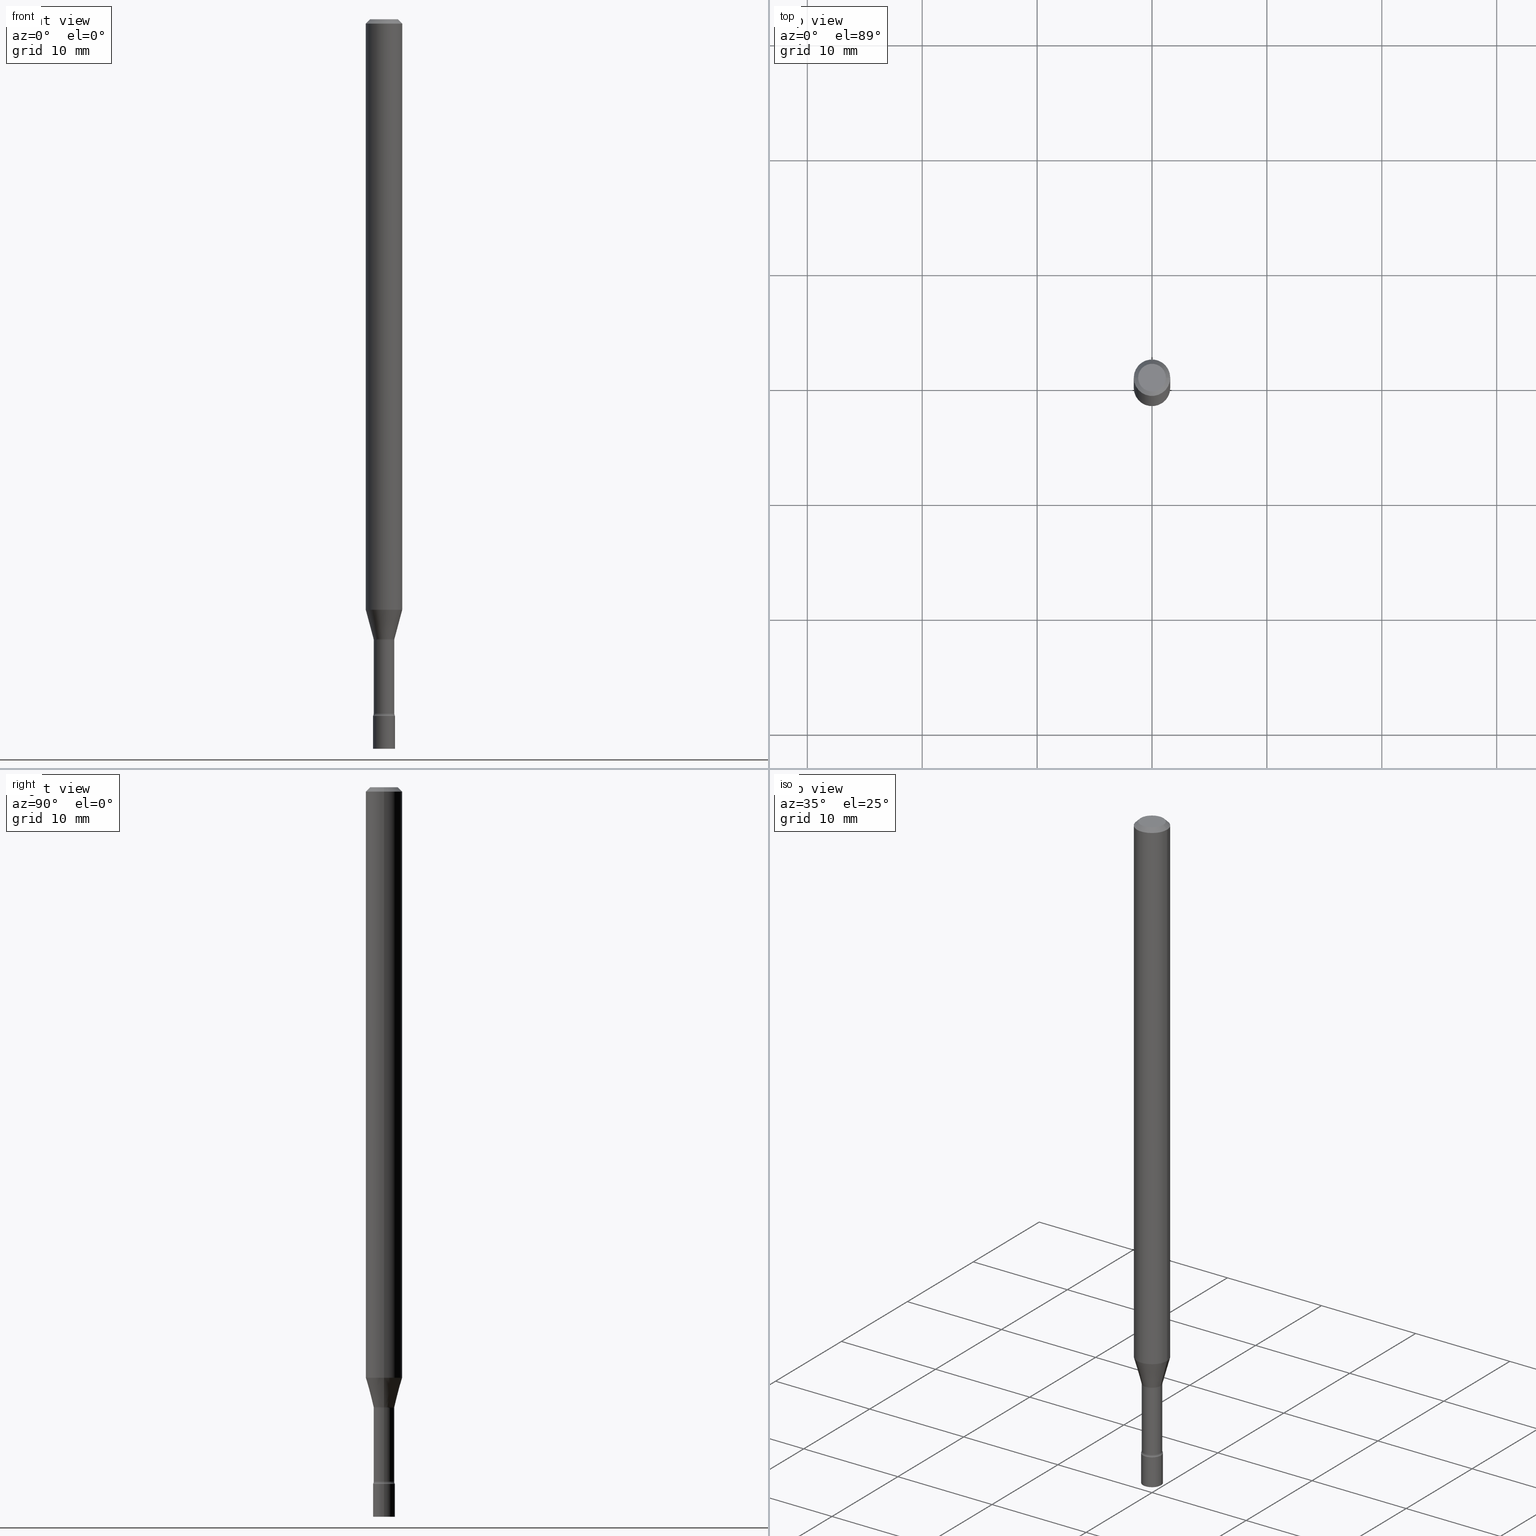
[diagram: canonical four-view strip — front | top / right | iso, engineering-drawing reading convention]
A machine part, canonical four-view strip (front | top / right | iso — engineering-drawing reading convention). The complete STEP part file that produces these views, byte-faithful:
ISO-10303-21;
HEADER;
FILE_DESCRIPTION (( 'STEP AP203' ),
    '1' );
FILE_NAME ('09712.STEP',
    '2024-03-09T01:08:27',
    ( '' ),
    ( '' ),
    'SwSTEP 2.0',
    'SolidWorks 2023',
    '' );
FILE_SCHEMA (( 'CONFIG_CONTROL_DESIGN' ));
ENDSEC;

DATA;
#1 = EDGE_CURVE ( 'NONE', #271, #263, #385, .T. ) ;
#2 = AXIS2_PLACEMENT_3D ( 'NONE', #180, #373, #319 ) ;
#3 = FACE_OUTER_BOUND ( 'NONE', #367, .T. ) ;
#4 = PERSON_AND_ORGANIZATION ( #255, #131 ) ;
#5 = CARTESIAN_POINT ( 'NONE',  ( 6.113672015462842613E-29, -8.728703347107864943E-15, -2.500000000000000000 ) ) ;
#6 = FACE_OUTER_BOUND ( 'NONE', #26, .T. ) ;
#7 = CARTESIAN_POINT ( 'NONE',  ( 5.818010580909894890E-29, -8.306577176965639319E-15, -2.379098259685360262 ) ) ;
#8 = AXIS2_PLACEMENT_3D ( 'NONE', #512, #240, #83 ) ;
#9 = SECURITY_CLASSIFICATION ( '', '', #462 ) ;
#10 = DIRECTION ( 'NONE',  ( 1.000000000000000000, -6.982962677686268288E-15, 0.000000000000000000 ) ) ;
#11 = ADVANCED_FACE ( 'NONE', ( #503 ), #213, .T. ) ;
#12 = COORDINATED_UNIVERSAL_TIME_OFFSET ( 5, 0, .BEHIND. ) ;
#13 = PLANE ( 'NONE',  #107 ) ;
#14 = ORIENTED_EDGE ( 'NONE', *, *, #309, .F. ) ;
#15 = CALENDAR_DATE ( 2024, 8, 3 ) ;
#16 = COORDINATED_UNIVERSAL_TIME_OFFSET ( 5, 0, .BEHIND. ) ;
#17 = EDGE_CURVE ( 'NONE', #48, #209, #130, .T. ) ;
#18 = FACE_OUTER_BOUND ( 'NONE', #421, .T. ) ;
#19 = ORIENTED_EDGE ( 'NONE', *, *, #282, .T. ) ;
#20 = CARTESIAN_POINT ( 'NONE',  ( 0.06250000000000000000, -4.364351673553916694E-16, 3.047610484872459871E-30 ) ) ;
#21 = COORDINATED_UNIVERSAL_TIME_OFFSET ( 5, 0, .BEHIND. ) ;
#22 = DIRECTION ( 'NONE',  ( 2.438088387897960049E-29, -3.491481338843145188E-15, -1.000000000000000000 ) ) ;
#23 = VERTEX_POINT ( 'NONE', #420 ) ;
#24 = DIRECTION ( 'NONE',  ( -2.445468806185136597E-29, 3.491481338843145583E-15, 1.000000000000000000 ) ) ;
#25 = LOCAL_TIME ( 20, 8, 27.00000000000000000, #301 ) ;
#26 = EDGE_LOOP ( 'NONE', ( #499, #104, #425, #266 ) ) ;
#27 = PLANE ( 'NONE',  #401 ) ;
#28 = DIRECTION ( 'NONE',  ( -0.2588190451025217942, 5.211531920934552619E-15, 0.9659258262890679791 ) ) ;
#29 = CYLINDRICAL_SURFACE ( 'NONE', #8, 0.06250000000000000000 ) ;
#30 = DIRECTION ( 'NONE',  ( -1.000000000000000000, 7.105427357600982137E-15, 0.000000000000000000 ) ) ;
#31 = ORIENTED_EDGE ( 'NONE', *, *, #207, .T. ) ;
#32 = LENGTH_MEASURE_WITH_UNIT ( LENGTH_MEASURE( 0.02539999999999999897 ), #93 );
#33 = CARTESIAN_POINT ( 'NONE',  ( -0.03524999999999998274, 2.504663143554351929E-16, -1.733924619314853502E-30 ) ) ;
#34 = ADVANCED_FACE ( 'NONE', ( #18 ), #430, .F. ) ;
#35 = CARTESIAN_POINT ( 'NONE',  ( -0.06250000000000000000, 3.840629472727443437E-16, -0.01500000000000003067 ) ) ;
#36 = CIRCLE ( 'NONE', #393, 0.03524999999999999661 ) ;
#37 = AXIS2_PLACEMENT_3D ( 'NONE', #242, #128, #191 ) ;
#38 = ORIENTED_EDGE ( 'NONE', *, *, #202, .F. ) ;
#39 = DIRECTION ( 'NONE',  ( -2.445468806185136597E-29, 3.491481338843145583E-15, 1.000000000000000000 ) ) ;
#40 = VERTEX_POINT ( 'NONE', #189 ) ;
#41 = CARTESIAN_POINT ( 'NONE',  ( 6.113672015462842613E-29, -8.728703347107864943E-15, -2.500000000000000000 ) ) ;
#42 = DIRECTION ( 'NONE',  ( 1.000000000000000000, -6.982962677686266711E-15, 0.000000000000000000 ) ) ;
#43 = CIRCLE ( 'NONE', #320, 0.03749999999999999861 ) ;
#44 = AXIS2_PLACEMENT_3D ( 'NONE', #72, #78, #42 ) ;
#45 = ADVANCED_FACE ( 'NONE', ( #424 ), #65, .F. ) ;
#46 = CARTESIAN_POINT ( 'NONE',  ( -0.03576111260566391253, -6.889435243139543592E-15, -2.123092501787273711 ) ) ;
#47 =( CONVERSION_BASED_UNIT ( 'INCH', #32 ) LENGTH_UNIT ( ) NAMED_UNIT ( #161 ) );
#48 = VERTEX_POINT ( 'NONE', #277 ) ;
#49 = EDGE_CURVE ( 'NONE', #89, #147, #441, .T. ) ;
#50 = DIRECTION ( 'NONE',  ( -2.445468806185136877E-29, 3.491481338843145188E-15, 1.000000000000000000 ) ) ;
#51 = AXIS2_PLACEMENT_3D ( 'NONE', #165, #434, #125 ) ;
#52 = ORIENTED_EDGE ( 'NONE', *, *, #296, .T. ) ;
#53 = VECTOR ( 'NONE', #232, 39.37007874015748143 ) ;
#54 = FACE_OUTER_BOUND ( 'NONE', #299, .T. ) ;
#55 = CARTESIAN_POINT ( 'NONE',  ( 5.201450494285011202E-29, -7.426292778619762925E-15, -2.126974787463811190 ) ) ;
#56 = DIRECTION ( 'NONE',  ( 1.000000000000000000, -6.982962677686264344E-15, 4.883557194083111780E-29 ) ) ;
#57 = APPROVAL_ROLE ( '' ) ;
#58 = CARTESIAN_POINT ( 'NONE',  ( 7.070806723891919892E-46, -1.009523804376275404E-31, -2.891391092786900929E-17 ) ) ;
#59 = ORIENTED_EDGE ( 'NONE', *, *, #350, .F. ) ;
#60 = VECTOR ( 'NONE', #268, 39.37007874015748143 ) ;
#61 = EDGE_CURVE ( 'NONE', #23, #387, #386, .T. ) ;
#62 = CARTESIAN_POINT ( 'NONE',  ( 4.947920986193955666E-29, -7.064319833347612909E-15, -2.023301615493748873 ) ) ;
#63 = EDGE_LOOP ( 'NONE', ( #369, #496 ) ) ;
#64 = PERSON_AND_ORGANIZATION ( #255, #131 ) ;
#65 = PLANE ( 'NONE',  #483 ) ;
#66 = EDGE_LOOP ( 'NONE', ( #200, #303, #455, #475 ) ) ;
#67 = CC_DESIGN_PERSON_AND_ORGANIZATION_ASSIGNMENT ( #192, #460, ( #9 ) ) ;
#68 = LINE ( 'NONE', #515, #53 ) ;
#69 = MANIFOLD_SOLID_BREP ( 'Body-Move/Copy2[1]', #140 ) ;
#70 = PERSON_AND_ORGANIZATION_ROLE ( 'design_supplier' ) ;
#71 = EDGE_LOOP ( 'NONE', ( #133, #19, #220, #59 ) ) ;
#72 = CARTESIAN_POINT ( 'NONE',  ( 3.668203209277712094E-31, -5.237222008264728876E-17, -0.01500000000000003067 ) ) ;
#73 = CIRCLE ( 'NONE', #487, 0.03524999999999999661 ) ;
#74 = DIRECTION ( 'NONE',  ( 1.000000000000000000, -6.982962677686266711E-15, 4.876176775795935793E-29 ) ) ;
#75 = PRODUCT_DEFINITION_FORMATION_WITH_SPECIFIED_SOURCE ( 'ANY', '', #412, .NOT_KNOWN. ) ;
#76 = VERTEX_POINT ( 'NONE', #391 ) ;
#77 = CARTESIAN_POINT ( 'NONE',  ( 0.000000000000000000, 0.000000000000000000, 0.000000000000000000 ) ) ;
#78 = DIRECTION ( 'NONE',  ( -2.445468806185136597E-29, 3.491481338843145583E-15, 1.000000000000000000 ) ) ;
#79 = EDGE_CURVE ( 'NONE', #387, #147, #311, .T. ) ;
#80 = FACE_OUTER_BOUND ( 'NONE', #261, .T. ) ;
#81 = ORIENTED_EDGE ( 'NONE', *, *, #357, .T. ) ;
#82 = ADVANCED_FACE ( 'NONE', ( #351 ), #514, .T. ) ;
#83 = DIRECTION ( 'NONE',  ( 1.000000000000000000, -6.982962677686266711E-15, 4.876176775795935793E-29 ) ) ;
#84 = MANIFOLD_SOLID_BREP ( 'Body-Move/Copy2[2]', #327 ) ;
#85 = VECTOR ( 'NONE', #206, 39.37007874015748143 ) ;
#86 = CIRCLE ( 'NONE', #164, 0.03576111260566391253 ) ;
#87 = ADVANCED_FACE ( 'NONE', ( #3 ), #486, .T. ) ;
#88 = DIRECTION ( 'NONE',  ( -2.438088387897960049E-29, 3.491481338843145188E-15, 1.000000000000000000 ) ) ;
#89 = VERTEX_POINT ( 'NONE', #46 ) ;
#90 = EDGE_CURVE ( 'NONE', #156, #504, #519, .T. ) ;
#91 = DIRECTION ( 'NONE',  ( -2.445468806185136597E-29, 3.491481338843145583E-15, 1.000000000000000000 ) ) ;
#92 = AXIS2_PLACEMENT_3D ( 'NONE', #248, #88, #396 ) ;
#93 =( LENGTH_UNIT ( ) NAMED_UNIT ( * ) SI_UNIT ( $, .METRE. ) );
#94 = CARTESIAN_POINT ( 'NONE',  ( 0.000000000000000000, 0.000000000000000000, 0.000000000000000000 ) ) ;
#95 = DIRECTION ( 'NONE',  ( 7.105427357601001859E-15, 1.000000000000000000, -3.491481338843145583E-15 ) ) ;
#96 = ADVANCED_FACE ( 'NONE', ( #171 ), #479, .T. ) ;
#97 = FACE_OUTER_BOUND ( 'NONE', #66, .T. ) ;
#98 = APPROVAL_DATE_TIME ( #188, #244 ) ;
#99 = CARTESIAN_POINT ( 'NONE',  ( 3.668203209277712094E-31, -5.237222008264728876E-17, -0.01500000000000003067 ) ) ;
#100 = APPROVAL ( #423, 'UNSPECIFIED' ) ;
#101 = CALENDAR_DATE ( 2024, 8, 3 ) ;
#102 = ORIENTED_EDGE ( 'NONE', *, *, #61, .T. ) ;
#103 = EDGE_CURVE ( 'NONE', #494, #176, #43, .T. ) ;
#104 = ORIENTED_EDGE ( 'NONE', *, *, #61, .F. ) ;
#105 = DIRECTION ( 'NONE',  ( -2.445468806185136597E-29, 3.491481338843145583E-15, 1.000000000000000000 ) ) ;
#106 = ORIENTED_EDGE ( 'NONE', *, *, #370, .F. ) ;
#107 = AXIS2_PLACEMENT_3D ( 'NONE', #139, #284, #216 ) ;
#108 = CIRCLE ( 'NONE', #44, 0.06250000000000000000 ) ;
#109 = PERSON_AND_ORGANIZATION_ROLE ( 'creator' ) ;
#110 = CC_DESIGN_PERSON_AND_ORGANIZATION_ASSIGNMENT ( #228, #109, ( #75 ) ) ;
#111 = EDGE_LOOP ( 'NONE', ( #224, #374 ) ) ;
#112 = ORIENTED_EDGE ( 'NONE', *, *, #49, .F. ) ;
#113 = CC_DESIGN_PERSON_AND_ORGANIZATION_ASSIGNMENT ( #4, #222, ( #412 ) ) ;
#114 = APPROVAL_ROLE ( '' ) ;
#115 = CARTESIAN_POINT ( 'NONE',  ( 0.06250000000000000000, -4.811533449433680977E-16, -0.01500000000000003067 ) ) ;
#116 = ORIENTED_EDGE ( 'NONE', *, *, #443, .F. ) ;
#117 = DIRECTION ( 'NONE',  ( -2.445468806185136597E-29, 3.491481338843145583E-15, 1.000000000000000000 ) ) ;
#118 = DIRECTION ( 'NONE',  ( -2.445468806185136877E-29, 3.491481338843145188E-15, 1.000000000000000000 ) ) ;
#119 = CARTESIAN_POINT ( 'NONE',  ( 5.191956485766338459E-29, -7.412737850628073127E-15, -2.123092501787273711 ) ) ;
#120 = ORIENTED_EDGE ( 'NONE', *, *, #174, .F. ) ;
#121 = CIRCLE ( 'NONE', #283, 0.03749999999999999861 ) ;
#122 = TOROIDAL_SURFACE ( 'NONE', #400, 0.05025000000000001688, 0.01500000000000003414 ) ;
#123 = AXIS2_PLACEMENT_3D ( 'NONE', #383, #117, #198 ) ;
#124 = DIRECTION ( 'NONE',  ( -2.445468806185136597E-29, 3.491481338843145583E-15, 1.000000000000000000 ) ) ;
#125 = DIRECTION ( 'NONE',  ( 1.000000000000000000, -6.982962677686267499E-15, 4.876681293081646444E-29 ) ) ;
#126 = ORIENTED_EDGE ( 'NONE', *, *, #17, .F. ) ;
#127 = EDGE_CURVE ( 'NONE', #331, #76, #477, .T. ) ;
#128 = DIRECTION ( 'NONE',  ( -2.445468806185136597E-29, 3.491481338843145583E-15, 1.000000000000000000 ) ) ;
#129 = DIRECTION ( 'NONE',  ( 2.445468806185136597E-29, -3.491481338843145583E-15, -1.000000000000000000 ) ) ;
#130 = CIRCLE ( 'NONE', #272, 0.01500000000000001853 ) ;
#131 = ORGANIZATION ( 'UNSPECIFIED', 'UNSPECIFIED', '' ) ;
#132 = PRODUCT_RELATED_PRODUCT_CATEGORY ( 'detail', '', ( #412 ) ) ;
#133 = ORIENTED_EDGE ( 'NONE', *, *, #357, .F. ) ;
#134 = DIRECTION ( 'NONE',  ( 1.000000000000000000, -6.982962677686262766E-15, 0.000000000000000000 ) ) ;
#135 = DIRECTION ( 'NONE',  ( 1.000000000000000000, -6.982962677686268288E-15, 0.000000000000000000 ) ) ;
#136 = AXIS2_PLACEMENT_3D ( 'NONE', #41, #210, #135 ) ;
#137 = TOROIDAL_SURFACE ( 'NONE', #419, 0.05024999999999999606, 0.01500000000000001853 ) ;
#138 = ADVANCED_FACE ( 'NONE', ( #80 ), #29, .T. ) ;
#139 = CARTESIAN_POINT ( 'NONE',  ( 2.618611004132960891E-16, 0.03749999999999126948, -2.500000000000000000 ) ) ;
#140 = CLOSED_SHELL ( 'NONE', ( #403, #87, #481, #322 ) ) ;
#141 = AXIS2_PLACEMENT_3D ( 'NONE', #291, #95, #408 ) ;
#142 = APPLICATION_PROTOCOL_DEFINITION ( 'international standard', 'config_control_design', 1994, #447 ) ;
#143 = CARTESIAN_POINT ( 'NONE',  ( 0.03524999999999998274, -2.461494343884408286E-16, 1.718852313468066708E-30 ) ) ;
#144 = DATE_TIME_ROLE ( 'creation_date' ) ;
#145 = DIRECTION ( 'NONE',  ( -2.445468806185136597E-29, 3.491481338843145583E-15, 1.000000000000000000 ) ) ;
#146 = DIRECTION ( 'NONE',  ( 1.000000000000000000, -6.982962677686251722E-15, 0.000000000000000000 ) ) ;
#147 = VERTEX_POINT ( 'NONE', #245 ) ;
#148 = CC_DESIGN_DATE_AND_TIME_ASSIGNMENT ( #492, #144, ( #364 ) ) ;
#149 = SHAPE_DEFINITION_REPRESENTATION ( #172, #442 ) ;
#150 = ORIENTED_EDGE ( 'NONE', *, *, #448, .F. ) ;
#151 = CIRCLE ( 'NONE', #51, 0.04749999999999999362 ) ;
#152 =( GEOMETRIC_REPRESENTATION_CONTEXT ( 3 ) GLOBAL_UNCERTAINTY_ASSIGNED_CONTEXT ( ( #297 ) ) GLOBAL_UNIT_ASSIGNED_CONTEXT ( ( #47, #362, #358 ) ) REPRESENTATION_CONTEXT ( 'NONE', 'WORKASPACE' ) );
#153 = PERSON_AND_ORGANIZATION ( #255, #131 ) ;
#154 = CARTESIAN_POINT ( 'NONE',  ( 0.06250000000000000000, -7.500755000703003789E-15, -2.023301615493748873 ) ) ;
#155 = DIRECTION ( 'NONE',  ( -6.982962677686266711E-15, -1.000000000000000000, 3.491481338843145583E-15 ) ) ;
#156 = VERTEX_POINT ( 'NONE', #506 ) ;
#157 = CARTESIAN_POINT ( 'NONE',  ( -0.03749999999999999861, 2.664535259100375598E-16, -1.844600658845589458E-30 ) ) ;
#158 = LINE ( 'NONE', #35, #85 ) ;
#159 = CARTESIAN_POINT ( 'NONE',  ( 5.201450494285011202E-29, -7.426292778619762925E-15, -2.126974787463811190 ) ) ;
#160 = ORIENTED_EDGE ( 'NONE', *, *, #431, .T. ) ;
#161 = DIMENSIONAL_EXPONENTS ( 1.000000000000000000, 0.000000000000000000, 0.000000000000000000, 0.000000000000000000, 0.000000000000000000, 0.000000000000000000, 0.000000000000000000 ) ;
#162 = AXIS2_PLACEMENT_3D ( 'NONE', #185, #294, #146 ) ;
#163 = DIRECTION ( 'NONE',  ( 1.000000000000000000, -6.982962677686267499E-15, 4.883557194083112901E-29 ) ) ;
#164 = AXIS2_PLACEMENT_3D ( 'NONE', #247, #508, #402 ) ;
#165 = CARTESIAN_POINT ( 'NONE',  ( 7.070806723891919892E-46, -1.009523804376275404E-31, -2.891391092786900929E-17 ) ) ;
#166 = DIRECTION ( 'NONE',  ( -2.445468806185136877E-29, 3.491481338843145188E-15, 1.000000000000000000 ) ) ;
#167 = LINE ( 'NONE', #115, #60 ) ;
#168 = APPROVAL ( #179, 'UNSPECIFIED' ) ;
#169 = VECTOR ( 'NONE', #118, 39.37007874015748143 ) ;
#170 = EDGE_LOOP ( 'NONE', ( #208, #160, #295, #359 ) ) ;
#171 = FACE_OUTER_BOUND ( 'NONE', #398, .T. ) ;
#172 = PRODUCT_DEFINITION_SHAPE ( 'NONE', 'NONE',  #364 ) ;
#173 = DIRECTION ( 'NONE',  ( -2.445468806185136597E-29, 3.491481338843145583E-15, 1.000000000000000000 ) ) ;
#174 = EDGE_CURVE ( 'NONE', #252, #227, #158, .T. ) ;
#175 = AXIS2_PLACEMENT_3D ( 'NONE', #518, #235, #30 ) ;
#176 = VERTEX_POINT ( 'NONE', #463 ) ;
#177 = ADVANCED_FACE ( 'NONE', ( #429 ), #279, .T. ) ;
#178 = CC_DESIGN_PERSON_AND_ORGANIZATION_ASSIGNMENT ( #217, #337, ( #364 ) ) ;
#179 = APPROVAL_STATUS ( 'not_yet_approved' ) ;
#180 = CARTESIAN_POINT ( 'NONE',  ( 3.668203209277712094E-31, -5.237222008264728876E-17, -0.01500000000000003067 ) ) ;
#181 = DIRECTION ( 'NONE',  ( 1.000000000000000000, 0.000000000000000000, 0.000000000000000000 ) ) ;
#182 = CIRCLE ( 'NONE', #418, 0.04749999999999999362 ) ;
#183 = AXIS2_PLACEMENT_3D ( 'NONE', #77, #237, #181 ) ;
#184 = ORIENTED_EDGE ( 'NONE', *, *, #17, .T. ) ;
#185 = CARTESIAN_POINT ( 'NONE',  ( 0.05025000000000001688, -8.657471051519373369E-15, -2.379098259685360262 ) ) ;
#186 = ORIENTED_EDGE ( 'NONE', *, *, #493, .T. ) ;
#187 = COORDINATED_UNIVERSAL_TIME_OFFSET ( 5, 0, .BEHIND. ) ;
#188 = DATE_AND_TIME ( #101, #317 ) ;
#189 = CARTESIAN_POINT ( 'NONE',  ( 0.06250000000000000000, -4.888073874380389458E-16, -0.01500000000000003067 ) ) ;
#190 = ORIENTED_EDGE ( 'NONE', *, *, #476, .F. ) ;
#191 = DIRECTION ( 'NONE',  ( 1.000000000000000000, -6.982962677686258033E-15, 0.000000000000000000 ) ) ;
#192 = PERSON_AND_ORGANIZATION ( #255, #131 ) ;
#193 = ORIENTED_EDGE ( 'NONE', *, *, #238, .T. ) ;
#194 = AXIS2_PLACEMENT_3D ( 'NONE', #94, #91, #254 ) ;
#195 = LINE ( 'NONE', #20, #502 ) ;
#196 = DIRECTION ( 'NONE',  ( 1.000000000000000000, -6.982962677686268288E-15, 0.000000000000000000 ) ) ;
#197 = ORIENTED_EDGE ( 'NONE', *, *, #370, .T. ) ;
#198 = DIRECTION ( 'NONE',  ( 1.000000000000000000, -6.982962677686266711E-15, 4.876176775795935793E-29 ) ) ;
#199 = CARTESIAN_POINT ( 'NONE',  ( 3.668203209277712094E-31, -5.237222008264728876E-17, -0.01500000000000003067 ) ) ;
#200 = ORIENTED_EDGE ( 'NONE', *, *, #207, .F. ) ;
#201 = DIRECTION ( 'NONE',  ( -2.445468806185136877E-29, 3.491481338843145188E-15, 1.000000000000000000 ) ) ;
#202 = EDGE_CURVE ( 'NONE', #147, #209, #73, .T. ) ;
#203 = FACE_OUTER_BOUND ( 'NONE', #111, .T. ) ;
#204 = CIRCLE ( 'NONE', #444, 0.03524999999999997580 ) ;
#205 = APPROVAL_PERSON_ORGANIZATION ( #290, #244, #57 ) ;
#206 = DIRECTION ( 'NONE',  ( -0.7071067811865475727, 2.468850131082257455E-15, -0.7071067811865474617 ) ) ;
#207 = EDGE_CURVE ( 'NONE', #318, #40, #167, .T. ) ;
#208 = ORIENTED_EDGE ( 'NONE', *, *, #312, .T. ) ;
#209 = VERTEX_POINT ( 'NONE', #304 ) ;
#210 = DIRECTION ( 'NONE',  ( -2.445468806185136597E-29, 3.491481338843145583E-15, 1.000000000000000000 ) ) ;
#211 = AXIS2_PLACEMENT_3D ( 'NONE', #246, #39, #134 ) ;
#212 = ADVANCED_FACE ( 'NONE', ( #474 ), #314, .T. ) ;
#213 = CONICAL_SURFACE ( 'NONE', #328, 0.03576111260566391253, 0.2617993877991505181 ) ;
#214 = VECTOR ( 'NONE', #28, 39.37007874015748143 ) ;
#215 = DIRECTION ( 'NONE',  ( 1.000000000000000000, -6.982962677686268288E-15, 0.000000000000000000 ) ) ;
#216 = DIRECTION ( 'NONE',  ( -1.000000000000000000, 6.982962677686265922E-15, -4.876176775795935793E-29 ) ) ;
#217 = PERSON_AND_ORGANIZATION ( #255, #131 ) ;
#218 = CONICAL_SURFACE ( 'NONE', #310, 0.03576111260566391253, 0.2617993877991505181 ) ;
#219 = LOCAL_TIME ( 20, 8, 27.00000000000000000, #12 ) ;
#220 = ORIENTED_EDGE ( 'NONE', *, *, #379, .T. ) ;
#221 = EDGE_CURVE ( 'NONE', #318, #252, #151, .T. ) ;
#222 = PERSON_AND_ORGANIZATION_ROLE ( 'design_owner' ) ;
#223 = ORIENTED_EDGE ( 'NONE', *, *, #90, .F. ) ;
#224 = ORIENTED_EDGE ( 'NONE', *, *, #127, .F. ) ;
#225 = APPLICATION_CONTEXT ( 'configuration controlled 3d designs of mechanical parts and assemblies' ) ;
#226 = CARTESIAN_POINT ( 'NONE',  ( 3.316907271900976096E-16, 0.04749999999999999362, -1.803023190589839165E-16 ) ) ;
#227 = VERTEX_POINT ( 'NONE', #276 ) ;
#228 = PERSON_AND_ORGANIZATION ( #255, #131 ) ;
#229 = DIRECTION ( 'NONE',  ( 1.000000000000000000, -6.982962677686262766E-15, 0.000000000000000000 ) ) ;
#230 = ORIENTED_EDGE ( 'NONE', *, *, #500, .T. ) ;
#231 = DESIGN_CONTEXT ( 'detailed design', #447, 'design' ) ;
#232 = DIRECTION ( 'NONE',  ( -2.445468806185136877E-29, 3.491481338843145188E-15, 1.000000000000000000 ) ) ;
#233 = CONICAL_SURFACE ( 'NONE', #2, 0.06250000000000000000, 0.7853981633974483900 ) ;
#234 = CARTESIAN_POINT ( 'NONE',  ( 0.03749999999999999861, -2.618611004132350016E-16, 1.828566290923475922E-30 ) ) ;
#235 = DIRECTION ( 'NONE',  ( 7.105427357601001859E-15, 1.000000000000000000, -3.491481338843145583E-15 ) ) ;
#236 = ORIENTED_EDGE ( 'NONE', *, *, #436, .T. ) ;
#237 = DIRECTION ( 'NONE',  ( 0.000000000000000000, 0.000000000000000000, 1.000000000000000000 ) ) ;
#238 = EDGE_CURVE ( 'NONE', #504, #176, #308, .T. ) ;
#239 = FACE_OUTER_BOUND ( 'NONE', #349, .T. ) ;
#240 = DIRECTION ( 'NONE',  ( -2.445468806185136597E-29, 3.491481338843145583E-15, 1.000000000000000000 ) ) ;
#241 = AXIS2_PLACEMENT_3D ( 'NONE', #344, #466, #74 ) ;
#242 = CARTESIAN_POINT ( 'NONE',  ( 5.191956485766338459E-29, -7.412737850628073127E-15, -2.123092501787273711 ) ) ;
#243 = CC_DESIGN_APPROVAL ( #244, ( #364 ) ) ;
#244 = APPROVAL ( #376, 'UNSPECIFIED' ) ;
#245 = CARTESIAN_POINT ( 'NONE',  ( -0.03525000000000000355, -7.615968663437265781E-15, -2.126974787463811190 ) ) ;
#246 = CARTESIAN_POINT ( 'NONE',  ( 4.947920986193955666E-29, -7.064319833347612909E-15, -2.023301615493748873 ) ) ;
#247 = CARTESIAN_POINT ( 'NONE',  ( 5.191956485766338459E-29, -7.412737850628073127E-15, -2.123092501787273711 ) ) ;
#248 = CARTESIAN_POINT ( 'NONE',  ( 5.837334040363921048E-29, -8.334165955818587781E-15, -2.387000000000000011 ) ) ;
#249 = AXIS2_PLACEMENT_3D ( 'NONE', #62, #380, #229 ) ;
#250 = AXIS2_PLACEMENT_3D ( 'NONE', #159, #338, #330 ) ;
#251 = CC_DESIGN_SECURITY_CLASSIFICATION ( #9, ( #75 ) ) ;
#252 = VERTEX_POINT ( 'NONE', #388 ) ;
#253 = ADVANCED_FACE ( 'NONE', ( #239 ), #218, .T. ) ;
#254 = DIRECTION ( 'NONE',  ( 1.000000000000000000, -6.982962677686268288E-15, 4.876176775795936353E-29 ) ) ;
#255 = PERSON ( 'UNSPECIFIED', 'UNSPECIFIED', 'UNSPECIFIED', ('UNSPECIFIED'), ('UNSPECIFIED'), ('UNSPECIFIED') ) ;
#256 = ORIENTED_EDGE ( 'NONE', *, *, #1, .T. ) ;
#257 = LINE ( 'NONE', #143, #298 ) ;
#258 = AXIS2_PLACEMENT_3D ( 'NONE', #348, #510, #470 ) ;
#259 = DIRECTION ( 'NONE',  ( -2.445468806185136597E-29, 3.491481338843145583E-15, 1.000000000000000000 ) ) ;
#260 = ORIENTED_EDGE ( 'NONE', *, *, #79, .F. ) ;
#261 = EDGE_LOOP ( 'NONE', ( #190, #256, #278, #389 ) ) ;
#262 = VECTOR ( 'NONE', #201, 39.37007874015748143 ) ;
#263 = VERTEX_POINT ( 'NONE', #154 ) ;
#264 = ADVANCED_FACE ( 'NONE', ( #302 ), #122, .F. ) ;
#265 = DATE_TIME_ROLE ( 'classification_date' ) ;
#266 = ORIENTED_EDGE ( 'NONE', *, *, #127, .T. ) ;
#267 = CALENDAR_DATE ( 2024, 8, 3 ) ;
#268 = DIRECTION ( 'NONE',  ( 0.7071067811865475727, -7.319954787623256045E-15, -0.7071067811865474617 ) ) ;
#269 = EDGE_LOOP ( 'NONE', ( #260, #81, #433, #38 ) ) ;
#270 = DIRECTION ( 'NONE',  ( -1.000000000000000000, 6.982962677686266711E-15, 0.000000000000000000 ) ) ;
#271 = VERTEX_POINT ( 'NONE', #449 ) ;
#272 = AXIS2_PLACEMENT_3D ( 'NONE', #333, #155, #305 ) ;
#273 = CIRCLE ( 'NONE', #484, 0.03749999999999999861 ) ;
#274 = CARTESIAN_POINT ( 'NONE',  ( -0.03576111260566391253, -7.158639862781539257E-15, -2.123092501787273711 ) ) ;
#275 = ADVANCED_FACE ( 'NONE', ( #6 ), #360, .F. ) ;
#276 = CARTESIAN_POINT ( 'NONE',  ( -0.06250000000000000000, -3.114256816865067970E-15, -0.01500000000000003067 ) ) ;
#277 = CARTESIAN_POINT ( 'NONE',  ( 0.03576111260566391253, -7.662456365265959066E-15, -2.123092501787273711 ) ) ;
#278 = ORIENTED_EDGE ( 'NONE', *, *, #448, .T. ) ;
#279 = CONICAL_SURFACE ( 'NONE', #365, 0.06250000000000000000, 0.7853981633974483900 ) ;
#280 = DIRECTION ( 'NONE',  ( 1.000000000000000000, -6.982962677686268288E-15, 0.000000000000000000 ) ) ;
#281 = ORIENTED_EDGE ( 'NONE', *, *, #296, .F. ) ;
#282 = EDGE_CURVE ( 'NONE', #387, #76, #410, .T. ) ;
#283 = AXIS2_PLACEMENT_3D ( 'NONE', #5, #454, #215 ) ;
#284 = DIRECTION ( 'NONE',  ( 2.438088387897960049E-29, -3.491481338843145188E-15, -1.000000000000000000 ) ) ;
#285 = DIRECTION ( 'NONE',  ( -2.445468806185136597E-29, 3.491481338843145583E-15, 1.000000000000000000 ) ) ;
#286 = MECHANICAL_CONTEXT ( 'NONE', #225, 'mechanical' ) ;
#287 = DIRECTION ( 'NONE',  ( -2.445468806185136597E-29, 3.491481338843145583E-15, 1.000000000000000000 ) ) ;
#288 = DIRECTION ( 'NONE',  ( 1.000000000000000000, -6.982962677686275388E-15, 0.000000000000000000 ) ) ;
#289 = DIRECTION ( 'NONE',  ( -2.445468806185136597E-29, 3.491481338843145583E-15, 1.000000000000000000 ) ) ;
#290 = PERSON_AND_ORGANIZATION ( #255, #131 ) ;
#291 = CARTESIAN_POINT ( 'NONE',  ( -0.05025000000000001688, -7.949529452246189645E-15, -2.379098259685360262 ) ) ;
#292 = EDGE_LOOP ( 'NONE', ( #377, #415, #193, #417 ) ) ;
#293 = PERSON_AND_ORGANIZATION ( #255, #131 ) ;
#294 = DIRECTION ( 'NONE',  ( -6.982962677686266711E-15, -1.000000000000000000, 3.491481338843145583E-15 ) ) ;
#295 = ORIENTED_EDGE ( 'NONE', *, *, #436, .F. ) ;
#296 = EDGE_CURVE ( 'NONE', #48, #263, #489, .T. ) ;
#297 = UNCERTAINTY_MEASURE_WITH_UNIT (LENGTH_MEASURE( 1.000000000000000082E-05 ), #47, 'distance_accuracy_value', 'NONE');
#298 = VECTOR ( 'NONE', #50, 39.37007874015748143 ) ;
#299 = EDGE_LOOP ( 'NONE', ( #511, #223 ) ) ;
#300 = ADVANCED_FACE ( 'NONE', ( #97 ), #233, .T. ) ;
#301 = COORDINATED_UNIVERSAL_TIME_OFFSET ( 5, 0, .BEHIND. ) ;
#302 = FACE_OUTER_BOUND ( 'NONE', #71, .T. ) ;
#303 = ORIENTED_EDGE ( 'NONE', *, *, #332, .F. ) ;
#304 = CARTESIAN_POINT ( 'NONE',  ( 0.03524999999999999661, -7.672442213008203606E-15, -2.126974787463811190 ) ) ;
#305 = DIRECTION ( 'NONE',  ( 1.000000000000000000, -6.982962677686259611E-15, 0.000000000000000000 ) ) ;
#306 = EDGE_LOOP ( 'NONE', ( #321, #335, #427, #150 ) ) ;
#307 = CARTESIAN_POINT ( 'NONE',  ( 0.000000000000000000, 0.000000000000000000, 0.000000000000000000 ) ) ;
#308 = LINE ( 'NONE', #234, #169 ) ;
#309 = EDGE_CURVE ( 'NONE', #23, #209, #257, .T. ) ;
#310 = AXIS2_PLACEMENT_3D ( 'NONE', #438, #355, #517 ) ;
#311 = LINE ( 'NONE', #33, #452 ) ;
#312 = EDGE_CURVE ( 'NONE', #504, #156, #121, .T. ) ;
#313 = FACE_OUTER_BOUND ( 'NONE', #292, .T. ) ;
#314 = CYLINDRICAL_SURFACE ( 'NONE', #241, 0.06250000000000000000 ) ;
#315 = EDGE_CURVE ( 'NONE', #227, #40, #399, .T. ) ;
#316 = VECTOR ( 'NONE', #482, 39.37007874015748143 ) ;
#317 = LOCAL_TIME ( 20, 8, 27.00000000000000000, #16 ) ;
#318 = VERTEX_POINT ( 'NONE', #416 ) ;
#319 = DIRECTION ( 'NONE',  ( -1.000000000000000000, 6.982962677686266711E-15, 0.000000000000000000 ) ) ;
#320 = AXIS2_PLACEMENT_3D ( 'NONE', #404, #124, #280 ) ;
#321 = ORIENTED_EDGE ( 'NONE', *, *, #458, .T. ) ;
#322 = ADVANCED_FACE ( 'NONE', ( #54 ), #13, .T. ) ;
#323 = CARTESIAN_POINT ( 'NONE',  ( -0.03524999999999997580, -8.061911646259376779E-15, -2.379098259685360262 ) ) ;
#324 = DIRECTION ( 'NONE',  ( 1.000000000000000000, -6.982962677686268288E-15, 4.876176775795936353E-29 ) ) ;
#325 = CARTESIAN_POINT ( 'NONE',  ( 5.837334040363921048E-29, -8.334165955818587781E-15, -2.387000000000000011 ) ) ;
#326 = CARTESIAN_POINT ( 'NONE',  ( 0.03750000000000001943, -8.596027056231822783E-15, -2.387000000000000011 ) ) ;
#327 = CLOSED_SHELL ( 'NONE', ( #392, #96, #264, #177, #212, #11, #253, #138, #300, #45, #472, #275, #82, #34 ) ) ;
#328 = AXIS2_PLACEMENT_3D ( 'NONE', #119, #145, #345 ) ;
#329 = APPLICATION_PROTOCOL_DEFINITION ( 'international standard', 'config_control_design', 1994, #225 ) ;
#330 = DIRECTION ( 'NONE',  ( 1.000000000000000000, -6.982962677686267499E-15, 4.883557194083112901E-29 ) ) ;
#331 = VERTEX_POINT ( 'NONE', #326 ) ;
#332 = EDGE_CURVE ( 'NONE', #252, #318, #182, .T. ) ;
#333 = CARTESIAN_POINT ( 'NONE',  ( 0.05024999999999999606, -7.777186653173496975E-15, -2.126974787463811190 ) ) ;
#334 = CARTESIAN_POINT ( 'NONE',  ( 5.818010580909893769E-29, -8.306577176965637742E-15, -2.379098259685360262 ) ) ;
#335 = ORIENTED_EDGE ( 'NONE', *, *, #476, .T. ) ;
#336 = DATE_AND_TIME ( #15, #25 ) ;
#337 = PERSON_AND_ORGANIZATION_ROLE ( 'creator' ) ;
#338 = DIRECTION ( 'NONE',  ( -2.445468806185136597E-29, 3.491481338843145583E-15, 1.000000000000000000 ) ) ;
#339 = ORIENTED_EDGE ( 'NONE', *, *, #406, .T. ) ;
#340 = DIRECTION ( 'NONE',  ( -2.445468806185136877E-29, 3.491481338843145188E-15, 1.000000000000000000 ) ) ;
#341 = APPROVAL_ROLE ( '' ) ;
#342 = CARTESIAN_POINT ( 'NONE',  ( 5.201450494285011202E-29, -7.426292778619762925E-15, -2.126974787463811190 ) ) ;
#343 = ORIENTED_EDGE ( 'NONE', *, *, #103, .T. ) ;
#344 = CARTESIAN_POINT ( 'NONE',  ( 0.000000000000000000, 0.000000000000000000, 0.000000000000000000 ) ) ;
#345 = DIRECTION ( 'NONE',  ( 1.000000000000000000, -6.982962677686258033E-15, 0.000000000000000000 ) ) ;
#346 = ORIENTED_EDGE ( 'NONE', *, *, #202, .T. ) ;
#347 = DIRECTION ( 'NONE',  ( 1.000000000000000000, -6.982962677686270655E-15, 0.000000000000000000 ) ) ;
#348 = CARTESIAN_POINT ( 'NONE',  ( 5.818010580909893769E-29, -8.306577176965637742E-15, -2.379098259685360262 ) ) ;
#349 = EDGE_LOOP ( 'NONE', ( #490, #467, #52, #381 ) ) ;
#350 = EDGE_CURVE ( 'NONE', #23, #331, #469, .T. ) ;
#351 = FACE_OUTER_BOUND ( 'NONE', #269, .T. ) ;
#352 = AXIS2_PLACEMENT_3D ( 'NONE', #468, #509, #196 ) ;
#353 = DIRECTION ( 'NONE',  ( 1.000000000000000000, -6.982962677686265922E-15, 4.876176775795935793E-29 ) ) ;
#354 = CC_DESIGN_APPROVAL ( #168, ( #75 ) ) ;
#355 = DIRECTION ( 'NONE',  ( -2.445468806185136597E-29, 3.491481338843145583E-15, 1.000000000000000000 ) ) ;
#356 = DIRECTION ( 'NONE',  ( -1.000000000000000000, 6.982962677686265922E-15, -4.876176775795935793E-29 ) ) ;
#357 = EDGE_CURVE ( 'NONE', #387, #23, #204, .T. ) ;
#358 =( NAMED_UNIT ( * ) SI_UNIT ( $, .STERADIAN. ) SOLID_ANGLE_UNIT ( ) );
#359 = ORIENTED_EDGE ( 'NONE', *, *, #238, .F. ) ;
#360 = TOROIDAL_SURFACE ( 'NONE', #513, 0.05025000000000001688, 0.01500000000000003414 ) ;
#361 = AXIS2_PLACEMENT_3D ( 'NONE', #516, #24, #428 ) ;
#362 =( NAMED_UNIT ( * ) PLANE_ANGLE_UNIT ( ) SI_UNIT ( $, .RADIAN. ) );
#363 = CARTESIAN_POINT ( 'NONE',  ( 5.818010580909894890E-29, -8.306577176965639319E-15, -2.379098259685360262 ) ) ;
#364 = PRODUCT_DEFINITION ( 'UNKNOWN', '', #75, #231 ) ;
#365 = AXIS2_PLACEMENT_3D ( 'NONE', #199, #129, #270 ) ;
#366 = CALENDAR_DATE ( 2024, 8, 3 ) ;
#367 = EDGE_LOOP ( 'NONE', ( #236, #343 ) ) ;
#368 = DIRECTION ( 'NONE',  ( 1.000000000000000000, -6.982962677686266711E-15, 0.000000000000000000 ) ) ;
#369 = ORIENTED_EDGE ( 'NONE', *, *, #332, .T. ) ;
#370 = EDGE_CURVE ( 'NONE', #209, #147, #36, .T. ) ;
#371 = AXIS2_PLACEMENT_3D ( 'NONE', #99, #413, #368 ) ;
#372 = CIRCLE ( 'NONE', #361, 0.03749999999999999861 ) ;
#373 = DIRECTION ( 'NONE',  ( 2.445468806185136597E-29, -3.491481338843145583E-15, -1.000000000000000000 ) ) ;
#374 = ORIENTED_EDGE ( 'NONE', *, *, #379, .F. ) ;
#375 = DIRECTION ( 'NONE',  ( -2.445468806185136597E-29, 3.491481338843145583E-15, 1.000000000000000000 ) ) ;
#376 = APPROVAL_STATUS ( 'not_yet_approved' ) ;
#377 = ORIENTED_EDGE ( 'NONE', *, *, #431, .F. ) ;
#378 = APPROVAL_DATE_TIME ( #501, #168 ) ;
#379 = EDGE_CURVE ( 'NONE', #76, #331, #273, .T. ) ;
#380 = DIRECTION ( 'NONE',  ( -2.445468806185136597E-29, 3.491481338843145583E-15, 1.000000000000000000 ) ) ;
#381 = ORIENTED_EDGE ( 'NONE', *, *, #1, .F. ) ;
#382 = CYLINDRICAL_SURFACE ( 'NONE', #488, 0.03749999999999999861 ) ;
#383 = CARTESIAN_POINT ( 'NONE',  ( 0.000000000000000000, 0.000000000000000000, 0.000000000000000000 ) ) ;
#384 = CALENDAR_DATE ( 2024, 8, 3 ) ;
#385 = CIRCLE ( 'NONE', #249, 0.06250000000000000000 ) ;
#386 = CIRCLE ( 'NONE', #258, 0.03524999999999997580 ) ;
#387 = VERTEX_POINT ( 'NONE', #323 ) ;
#388 = CARTESIAN_POINT ( 'NONE',  ( -0.04749999999999999362, 3.578768372314209027E-16, -2.891391092787141902E-17 ) ) ;
#389 = ORIENTED_EDGE ( 'NONE', *, *, #315, .F. ) ;
#390 = LINE ( 'NONE', #157, #262 ) ;
#391 = CARTESIAN_POINT ( 'NONE',  ( -0.03750000000000001943, -8.067712429908551158E-15, -2.387000000000000011 ) ) ;
#392 = ADVANCED_FACE ( 'NONE', ( #422 ), #137, .F. ) ;
#393 = AXIS2_PLACEMENT_3D ( 'NONE', #497, #375, #453 ) ;
#394 = LOCAL_TIME ( 20, 8, 27.00000000000000000, #21 ) ;
#395 = DIRECTION ( 'NONE',  ( -2.445468806185136597E-29, 3.491481338843145583E-15, 1.000000000000000000 ) ) ;
#396 = DIRECTION ( 'NONE',  ( 1.000000000000000000, -6.982962677686265922E-15, 4.876176775795935793E-29 ) ) ;
#397 = CARTESIAN_POINT ( 'NONE',  ( 0.03749999999999999861, -8.990564447521099944E-15, -2.500000000000000000 ) ) ;
#398 = EDGE_LOOP ( 'NONE', ( #102, #405, #106, #14 ) ) ;
#399 = CIRCLE ( 'NONE', #371, 0.06250000000000000000 ) ;
#400 = AXIS2_PLACEMENT_3D ( 'NONE', #363, #414, #56 ) ;
#401 = AXIS2_PLACEMENT_3D ( 'NONE', #465, #435, #353 ) ;
#402 = DIRECTION ( 'NONE',  ( 1.000000000000000000, -6.982962677686258033E-15, 0.000000000000000000 ) ) ;
#403 = ADVANCED_FACE ( 'NONE', ( #491 ), #437, .T. ) ;
#404 = CARTESIAN_POINT ( 'NONE',  ( 5.837334040363921048E-29, -8.334165955818587781E-15, -2.387000000000000011 ) ) ;
#405 = ORIENTED_EDGE ( 'NONE', *, *, #79, .T. ) ;
#406 = EDGE_CURVE ( 'NONE', #89, #271, #505, .T. ) ;
#407 = ORIENTED_EDGE ( 'NONE', *, *, #500, .F. ) ;
#408 = DIRECTION ( 'NONE',  ( -1.000000000000000000, 7.105427357600974249E-15, 0.000000000000000000 ) ) ;
#409 = EDGE_LOOP ( 'NONE', ( #507, #31, #186, #120 ) ) ;
#410 = CIRCLE ( 'NONE', #141, 0.01500000000000003587 ) ;
#411 = CC_DESIGN_APPROVAL ( #100, ( #9 ) ) ;
#412 = PRODUCT ( '09712', '09712', '', ( #286 ) ) ;
#413 = DIRECTION ( 'NONE',  ( -2.445468806185136597E-29, 3.491481338843145583E-15, 1.000000000000000000 ) ) ;
#414 = DIRECTION ( 'NONE',  ( -2.445468806185136597E-29, 3.491481338843145583E-15, 1.000000000000000000 ) ) ;
#415 = ORIENTED_EDGE ( 'NONE', *, *, #90, .T. ) ;
#416 = CARTESIAN_POINT ( 'NONE',  ( 0.04749999999999999362, -4.035134999187579609E-16, -2.891391092786643933E-17 ) ) ;
#417 = ORIENTED_EDGE ( 'NONE', *, *, #103, .F. ) ;
#418 = AXIS2_PLACEMENT_3D ( 'NONE', #58, #495, #456 ) ;
#419 = AXIS2_PLACEMENT_3D ( 'NONE', #55, #285, #163 ) ;
#420 = CARTESIAN_POINT ( 'NONE',  ( 0.03524999999999997580, -8.552726611354078422E-15, -2.379098259685360262 ) ) ;
#421 = EDGE_LOOP ( 'NONE', ( #112, #407, #184, #197 ) ) ;
#422 = FACE_OUTER_BOUND ( 'NONE', #464, .T. ) ;
#423 = APPROVAL_STATUS ( 'not_yet_approved' ) ;
#424 = FACE_OUTER_BOUND ( 'NONE', #63, .T. ) ;
#425 = ORIENTED_EDGE ( 'NONE', *, *, #350, .T. ) ;
#426 = DATE_AND_TIME ( #267, #520 ) ;
#427 = ORIENTED_EDGE ( 'NONE', *, *, #493, .F. ) ;
#428 = DIRECTION ( 'NONE',  ( 1.000000000000000000, -6.982962677686268288E-15, 0.000000000000000000 ) ) ;
#429 = FACE_OUTER_BOUND ( 'NONE', #409, .T. ) ;
#430 = TOROIDAL_SURFACE ( 'NONE', #250, 0.05024999999999999606, 0.01500000000000001853 ) ;
#431 = EDGE_CURVE ( 'NONE', #156, #494, #390, .T. ) ;
#432 = CIRCLE ( 'NONE', #211, 0.06250000000000000000 ) ;
#433 = ORIENTED_EDGE ( 'NONE', *, *, #309, .T. ) ;
#434 = DIRECTION ( 'NONE',  ( -2.445468806185136597E-29, 3.491481338843145583E-15, 1.000000000000000000 ) ) ;
#435 = DIRECTION ( 'NONE',  ( -2.438088387897960049E-29, 3.491481338843145188E-15, 1.000000000000000000 ) ) ;
#436 = EDGE_CURVE ( 'NONE', #176, #494, #372, .T. ) ;
#437 = CYLINDRICAL_SURFACE ( 'NONE', #123, 0.03749999999999999861 ) ;
#438 = CARTESIAN_POINT ( 'NONE',  ( 5.191956485766338459E-29, -7.412737850628073127E-15, -2.123092501787273711 ) ) ;
#439 = CARTESIAN_POINT ( 'NONE',  ( 0.000000000000000000, 0.000000000000000000, 0.000000000000000000 ) ) ;
#440 = CC_DESIGN_PERSON_AND_ORGANIZATION_ASSIGNMENT ( #64, #70, ( #75 ) ) ;
#441 = CIRCLE ( 'NONE', #175, 0.01500000000000001853 ) ;
#442 = ADVANCED_BREP_SHAPE_REPRESENTATION ( '09712', ( #69, #84, #183 ), #152 ) ;
#443 = EDGE_CURVE ( 'NONE', #89, #48, #446, .T. ) ;
#444 = AXIS2_PLACEMENT_3D ( 'NONE', #334, #289, #288 ) ;
#445 = ORIENTED_EDGE ( 'NONE', *, *, #49, .T. ) ;
#446 = CIRCLE ( 'NONE', #37, 0.03576111260566391253 ) ;
#447 = APPLICATION_CONTEXT ( 'configuration controlled 3d designs of mechanical parts and assemblies' ) ;
#448 = EDGE_CURVE ( 'NONE', #263, #40, #195, .T. ) ;
#449 = CARTESIAN_POINT ( 'NONE',  ( -0.06250000000000000000, -6.620230623497551082E-15, -2.023301615493748873 ) ) ;
#450 = CC_DESIGN_DATE_AND_TIME_ASSIGNMENT ( #336, #265, ( #9 ) ) ;
#451 = CARTESIAN_POINT ( 'NONE',  ( 0.03576111260566391253, -7.662456365265959066E-15, -2.123092501787273711 ) ) ;
#452 = VECTOR ( 'NONE', #166, 39.37007874015748143 ) ;
#453 = DIRECTION ( 'NONE',  ( 1.000000000000000000, -6.982962677686270655E-15, 0.000000000000000000 ) ) ;
#454 = DIRECTION ( 'NONE',  ( -2.445468806185136597E-29, 3.491481338843145583E-15, 1.000000000000000000 ) ) ;
#455 = ORIENTED_EDGE ( 'NONE', *, *, #174, .T. ) ;
#456 = DIRECTION ( 'NONE',  ( 1.000000000000000000, -6.982962677686267499E-15, 4.876681293081646444E-29 ) ) ;
#457 = EDGE_LOOP ( 'NONE', ( #230, #339, #461, #281 ) ) ;
#458 = EDGE_CURVE ( 'NONE', #263, #271, #432, .T. ) ;
#459 = AXIS2_PLACEMENT_3D ( 'NONE', #439, #173, #324 ) ;
#460 = PERSON_AND_ORGANIZATION_ROLE ( 'classification_officer' ) ;
#461 = ORIENTED_EDGE ( 'NONE', *, *, #458, .F. ) ;
#462 = SECURITY_CLASSIFICATION_LEVEL ( 'unclassified' ) ;
#463 = CARTESIAN_POINT ( 'NONE',  ( 0.03749999999999999861, -8.596027056231822783E-15, -2.387000000000000011 ) ) ;
#464 = EDGE_LOOP ( 'NONE', ( #116, #445, #346, #126 ) ) ;
#465 = CARTESIAN_POINT ( 'NONE',  ( 2.618611004132933280E-16, 0.03749999999999166500, -2.387000000000000011 ) ) ;
#466 = DIRECTION ( 'NONE',  ( -2.445468806185136597E-29, 3.491481338843145583E-15, 1.000000000000000000 ) ) ;
#467 = ORIENTED_EDGE ( 'NONE', *, *, #443, .T. ) ;
#468 = CARTESIAN_POINT ( 'NONE',  ( 5.837334040363921048E-29, -8.334165955818587781E-15, -2.387000000000000011 ) ) ;
#469 = CIRCLE ( 'NONE', #162, 0.01500000000000003587 ) ;
#470 = DIRECTION ( 'NONE',  ( 1.000000000000000000, -6.982962677686275388E-15, 0.000000000000000000 ) ) ;
#471 = APPROVAL_PERSON_ORGANIZATION ( #153, #100, #114 ) ;
#472 = ADVANCED_FACE ( 'NONE', ( #203 ), #27, .F. ) ;
#473 = DIRECTION ( 'NONE',  ( 1.000000000000000000, -6.982962677686266711E-15, 4.876176775795935793E-29 ) ) ;
#474 = FACE_OUTER_BOUND ( 'NONE', #306, .T. ) ;
#475 = ORIENTED_EDGE ( 'NONE', *, *, #315, .T. ) ;
#476 = EDGE_CURVE ( 'NONE', #271, #227, #68, .T. ) ;
#477 = CIRCLE ( 'NONE', #352, 0.03749999999999999861 ) ;
#478 = APPROVAL_PERSON_ORGANIZATION ( #293, #168, #341 ) ;
#479 = CYLINDRICAL_SURFACE ( 'NONE', #194, 0.03524999999999998274 ) ;
#480 = CARTESIAN_POINT ( 'NONE',  ( -0.03749999999999999861, -8.264981125553189739E-15, -2.387000000000000011 ) ) ;
#481 = ADVANCED_FACE ( 'NONE', ( #313 ), #382, .T. ) ;
#482 = DIRECTION ( 'NONE',  ( 0.2588190451025217942, 1.565188264969618812E-15, 0.9659258262890679791 ) ) ;
#483 = AXIS2_PLACEMENT_3D ( 'NONE', #226, #22, #356 ) ;
#484 = AXIS2_PLACEMENT_3D ( 'NONE', #325, #259, #10 ) ;
#485 = DIRECTION ( 'NONE',  ( 1.000000000000000000, -6.982962677686264344E-15, 4.883557194083111780E-29 ) ) ;
#486 = PLANE ( 'NONE',  #92 ) ;
#487 = AXIS2_PLACEMENT_3D ( 'NONE', #342, #395, #347 ) ;
#488 = AXIS2_PLACEMENT_3D ( 'NONE', #307, #105, #473 ) ;
#489 = LINE ( 'NONE', #451, #316 ) ;
#490 = ORIENTED_EDGE ( 'NONE', *, *, #406, .F. ) ;
#491 = FACE_OUTER_BOUND ( 'NONE', #170, .T. ) ;
#492 = DATE_AND_TIME ( #366, #219 ) ;
#493 = EDGE_CURVE ( 'NONE', #40, #227, #108, .T. ) ;
#494 = VERTEX_POINT ( 'NONE', #480 ) ;
#495 = DIRECTION ( 'NONE',  ( -2.445468806185136597E-29, 3.491481338843145583E-15, 1.000000000000000000 ) ) ;
#496 = ORIENTED_EDGE ( 'NONE', *, *, #221, .T. ) ;
#497 = CARTESIAN_POINT ( 'NONE',  ( 5.201450494285011202E-29, -7.426292778619762925E-15, -2.126974787463811190 ) ) ;
#498 = APPROVAL_DATE_TIME ( #426, #100 ) ;
#499 = ORIENTED_EDGE ( 'NONE', *, *, #282, .F. ) ;
#500 = EDGE_CURVE ( 'NONE', #48, #89, #86, .T. ) ;
#501 = DATE_AND_TIME ( #384, #394 ) ;
#502 = VECTOR ( 'NONE', #340, 39.37007874015748143 ) ;
#503 = FACE_OUTER_BOUND ( 'NONE', #457, .T. ) ;
#504 = VERTEX_POINT ( 'NONE', #397 ) ;
#505 = LINE ( 'NONE', #274, #214 ) ;
#506 = CARTESIAN_POINT ( 'NONE',  ( -0.03749999999999999861, -8.264981125553189739E-15, -2.500000000000000000 ) ) ;
#507 = ORIENTED_EDGE ( 'NONE', *, *, #221, .F. ) ;
#508 = DIRECTION ( 'NONE',  ( -2.445468806185136597E-29, 3.491481338843145583E-15, 1.000000000000000000 ) ) ;
#509 = DIRECTION ( 'NONE',  ( -2.445468806185136597E-29, 3.491481338843145583E-15, 1.000000000000000000 ) ) ;
#510 = DIRECTION ( 'NONE',  ( -2.445468806185136597E-29, 3.491481338843145583E-15, 1.000000000000000000 ) ) ;
#511 = ORIENTED_EDGE ( 'NONE', *, *, #312, .F. ) ;
#512 = CARTESIAN_POINT ( 'NONE',  ( 0.000000000000000000, 0.000000000000000000, 0.000000000000000000 ) ) ;
#513 = AXIS2_PLACEMENT_3D ( 'NONE', #7, #287, #485 ) ;
#514 = CYLINDRICAL_SURFACE ( 'NONE', #459, 0.03524999999999998274 ) ;
#515 = CARTESIAN_POINT ( 'NONE',  ( -0.06250000000000000000, 4.440892098500626162E-16, -3.074334431409316114E-30 ) ) ;
#516 = CARTESIAN_POINT ( 'NONE',  ( 5.837334040363921048E-29, -8.334165955818587781E-15, -2.387000000000000011 ) ) ;
#517 = DIRECTION ( 'NONE',  ( 1.000000000000000000, -6.982962677686258033E-15, 0.000000000000000000 ) ) ;
#518 = CARTESIAN_POINT ( 'NONE',  ( -0.05024999999999999606, -7.069245053900312462E-15, -2.126974787463811190 ) ) ;
#519 = CIRCLE ( 'NONE', #136, 0.03749999999999999861 ) ;
#520 = LOCAL_TIME ( 20, 8, 27.00000000000000000, #187 ) ;
ENDSEC;
END-ISO-10303-21;
